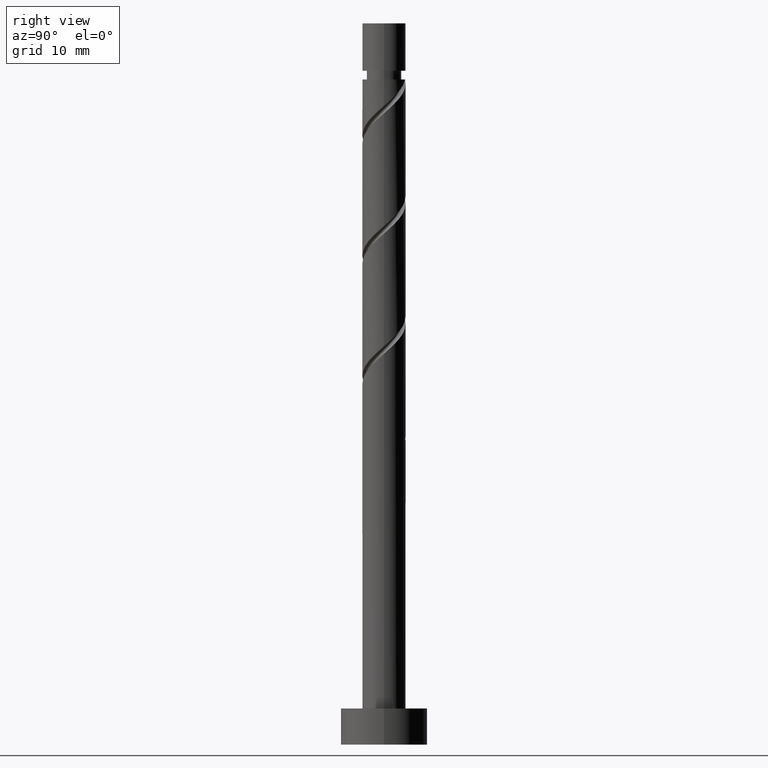
[diagram: clean part render]
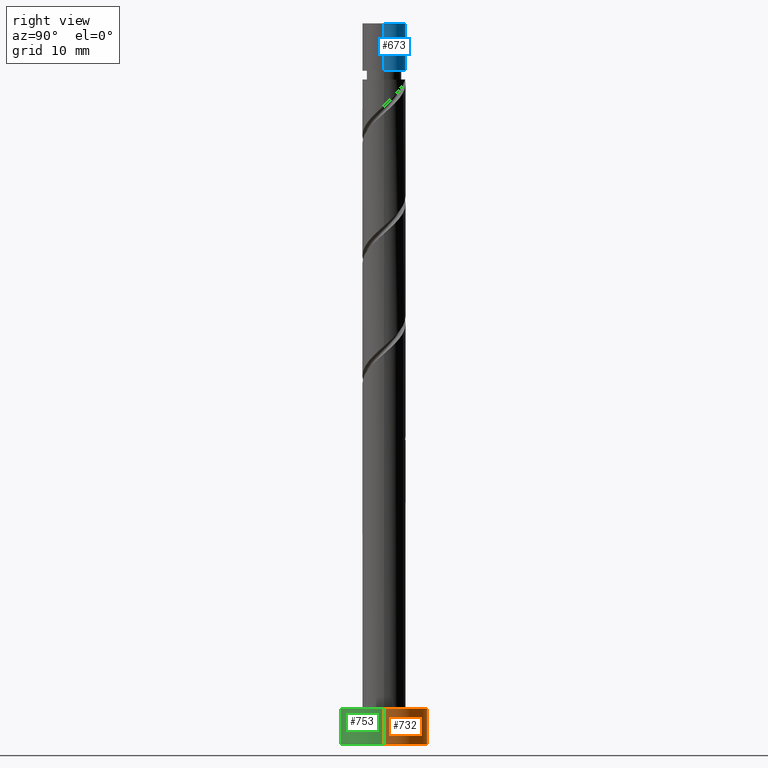
[diagram: same view with three faces highlighted in distinct colors, each labeled with its STEP entity id]
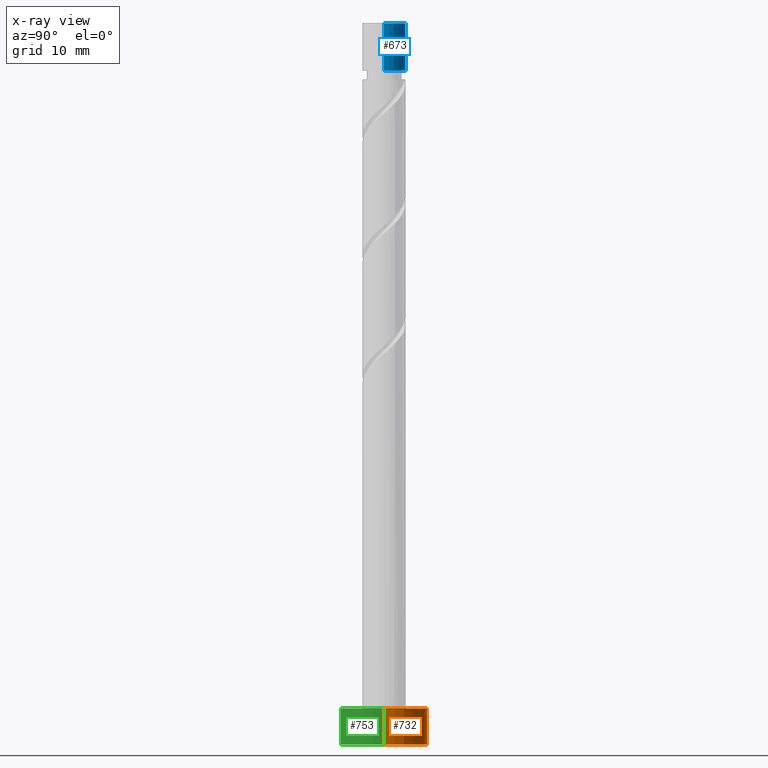
[diagram: x-ray of the same camera — body ghosted, the three highlighted faces saturated]
A machine part, right view with three faces highlighted in distinct colors.
The next image is the same camera in x-ray (body ghosted, the three faces saturated) — at least one of them is partly hidden behind the body in this view.
Their STEP definitions:

[orange] entity #732 — the highlighted cylindrical surface (partial cylindrical patch) has radius 6 mm, axis along (-0, -0, -1).
#28 = CIRCLE ( 'NONE', #917, 6.000000000000000888 ) ;
#32 = VERTEX_POINT ( 'NONE', #1425 ) ;
#34 = CARTESIAN_POINT ( 'NONE',  ( 0.000000000000000000, 0.000000000000000000, 0.000000000000000000 ) ) ;
#101 = ORIENTED_EDGE ( 'NONE', *, *, #990, .F. ) ;
#130 = VERTEX_POINT ( 'NONE', #563 ) ;
#141 = DIRECTION ( 'NONE',  ( 1.000000000000000000, 0.000000000000000000, 0.000000000000000000 ) ) ;
#197 = CIRCLE ( 'NONE', #775, 6.000000000000000888 ) ;
#207 = VERTEX_POINT ( 'NONE', #1269 ) ;
#259 = DIRECTION ( 'NONE',  ( -1.000000000000000000, 0.000000000000000000, 0.000000000000000000 ) ) ;
#303 = ORIENTED_EDGE ( 'NONE', *, *, #1416, .T. ) ;
#404 = DIRECTION ( 'NONE',  ( -0.000000000000000000, -0.000000000000000000, -1.000000000000000000 ) ) ;
#441 = CARTESIAN_POINT ( 'NONE',  ( 0.000000000000000000, 0.000000000000000000, 5.000000000000000000 ) ) ;
#464 = CARTESIAN_POINT ( 'NONE',  ( -6.000000000000000888, 0.000000000000000000, 5.000000000000000000 ) ) ;
#468 = EDGE_CURVE ( 'NONE', #512, #130, #836, .T. ) ;
#512 = VERTEX_POINT ( 'NONE', #464 ) ;
#563 = CARTESIAN_POINT ( 'NONE',  ( -6.000000000000000888, 0.000000000000000000, 0.000000000000000000 ) ) ;
#570 = VECTOR ( 'NONE', #404, 1000.000000000000000 ) ;
#577 = CYLINDRICAL_SURFACE ( 'NONE', #1373, 6.000000000000000888 ) ;
#688 = ORIENTED_EDGE ( 'NONE', *, *, #1089, .T. ) ;
#732 = ADVANCED_FACE ( 'NONE', ( #1366 ), #577, .T. ) ;
#766 = ORIENTED_EDGE ( 'NONE', *, *, #468, .F. ) ;
#775 = AXIS2_PLACEMENT_3D ( 'NONE', #947, #828, #1171 ) ;
#828 = DIRECTION ( 'NONE',  ( 0.000000000000000000, 0.000000000000000000, 1.000000000000000000 ) ) ;
#836 = LINE ( 'NONE', #1414, #570 ) ;
#875 = CARTESIAN_POINT ( 'NONE',  ( 6.000000000000000888, 7.347880794884120722E-16, 5.000000000000000000 ) ) ;
#901 = DIRECTION ( 'NONE',  ( -0.000000000000000000, -0.000000000000000000, -1.000000000000000000 ) ) ;
#917 = AXIS2_PLACEMENT_3D ( 'NONE', #34, #1054, #141 ) ;
#947 = CARTESIAN_POINT ( 'NONE',  ( 0.000000000000000000, 0.000000000000000000, 5.000000000000000000 ) ) ;
#964 = VECTOR ( 'NONE', #1200, 1000.000000000000000 ) ;
#990 = EDGE_CURVE ( 'NONE', #207, #512, #197, .T. ) ;
#1054 = DIRECTION ( 'NONE',  ( 0.000000000000000000, 0.000000000000000000, 1.000000000000000000 ) ) ;
#1085 = LINE ( 'NONE', #875, #964 ) ;
#1089 = EDGE_CURVE ( 'NONE', #207, #32, #1085, .T. ) ;
#1171 = DIRECTION ( 'NONE',  ( 1.000000000000000000, 0.000000000000000000, 0.000000000000000000 ) ) ;
#1200 = DIRECTION ( 'NONE',  ( -0.000000000000000000, -0.000000000000000000, -1.000000000000000000 ) ) ;
#1269 = CARTESIAN_POINT ( 'NONE',  ( 6.000000000000000888, 7.347880794884120722E-16, 5.000000000000000000 ) ) ;
#1366 = FACE_OUTER_BOUND ( 'NONE', #1455, .T. ) ;
#1373 = AXIS2_PLACEMENT_3D ( 'NONE', #441, #901, #259 ) ;
#1414 = CARTESIAN_POINT ( 'NONE',  ( -6.000000000000000888, 0.000000000000000000, 5.000000000000000000 ) ) ;
#1416 = EDGE_CURVE ( 'NONE', #32, #130, #28, .T. ) ;
#1425 = CARTESIAN_POINT ( 'NONE',  ( 6.000000000000000888, 7.347880794884120722E-16, 0.000000000000000000 ) ) ;
#1455 = EDGE_LOOP ( 'NONE', ( #101, #688, #303, #766 ) ) ;

[blue] entity #673 — the highlighted cylindrical surface (edge-blend (fillet) strip) has radius 3 mm, axis along (-0, -0, -1).
#82 = CARTESIAN_POINT ( 'NONE',  ( -3.000000000000001776, 0.000000000000000000, 93.42674163329729708 ) ) ;
#87 = DIRECTION ( 'NONE',  ( -0.000000000000000000, -0.000000000000000000, -1.000000000000000000 ) ) ;
#100 = AXIS2_PLACEMENT_3D ( 'NONE', #1403, #375, #834 ) ;
#122 = VERTEX_POINT ( 'NONE', #82 ) ;
#124 = CIRCLE ( 'NONE', #100, 3.000000000000000444 ) ;
#191 = VERTEX_POINT ( 'NONE', #810 ) ;
#218 = EDGE_CURVE ( 'NONE', #191, #122, #346, .T. ) ;
#255 = CARTESIAN_POINT ( 'NONE',  ( -3.000000000000000444, 0.000000000000000000, 100.0000000000000000 ) ) ;
#257 = ORIENTED_EDGE ( 'NONE', *, *, #1172, .T. ) ;
#267 = CIRCLE ( 'NONE', #892, 3.000000000000001776 ) ;
#316 = VECTOR ( 'NONE', #1442, 1000.000000000000000 ) ;
#320 = CYLINDRICAL_SURFACE ( 'NONE', #1133, 3.000000000000000444 ) ;
#346 = LINE ( 'NONE', #255, #567 ) ;
#375 = DIRECTION ( 'NONE',  ( 0.000000000000000000, 0.000000000000000000, 1.000000000000000000 ) ) ;
#450 = DIRECTION ( 'NONE',  ( -1.000000000000000000, 0.000000000000000000, 0.000000000000000000 ) ) ;
#515 = LINE ( 'NONE', #975, #316 ) ;
#567 = VECTOR ( 'NONE', #698, 1000.000000000000000 ) ;
#664 = FACE_OUTER_BOUND ( 'NONE', #1437, .T. ) ;
#673 = ADVANCED_FACE ( 'NONE', ( #664 ), #320, .T. ) ;
#679 = ORIENTED_EDGE ( 'NONE', *, *, #1441, .F. ) ;
#682 = DIRECTION ( 'NONE',  ( -1.000000000000000000, 0.000000000000000000, 0.000000000000000000 ) ) ;
#698 = DIRECTION ( 'NONE',  ( -0.000000000000000000, -0.000000000000000000, -1.000000000000000000 ) ) ;
#709 = CARTESIAN_POINT ( 'NONE',  ( 0.000000000000000000, 0.000000000000000000, 93.42674163329729708 ) ) ;
#733 = CARTESIAN_POINT ( 'NONE',  ( 3.000000000000000444, 3.673940397442060361E-16, 100.0000000000000000 ) ) ;
#741 = VERTEX_POINT ( 'NONE', #733 ) ;
#810 = CARTESIAN_POINT ( 'NONE',  ( -3.000000000000000444, 0.000000000000000000, 100.0000000000000000 ) ) ;
#834 = DIRECTION ( 'NONE',  ( 1.000000000000000000, 0.000000000000000000, 0.000000000000000000 ) ) ;
#840 = DIRECTION ( 'NONE',  ( -0.000000000000000000, -0.000000000000000000, -1.000000000000000000 ) ) ;
#892 = AXIS2_PLACEMENT_3D ( 'NONE', #709, #840, #450 ) ;
#914 = ORIENTED_EDGE ( 'NONE', *, *, #218, .F. ) ;
#975 = CARTESIAN_POINT ( 'NONE',  ( 3.000000000000000444, 3.673940397442060361E-16, 100.0000000000000000 ) ) ;
#1014 = EDGE_CURVE ( 'NONE', #741, #191, #124, .T. ) ;
#1082 = VERTEX_POINT ( 'NONE', #1449 ) ;
#1118 = CARTESIAN_POINT ( 'NONE',  ( 0.000000000000000000, 0.000000000000000000, 100.0000000000000000 ) ) ;
#1133 = AXIS2_PLACEMENT_3D ( 'NONE', #1118, #87, #682 ) ;
#1172 = EDGE_CURVE ( 'NONE', #741, #1082, #515, .T. ) ;
#1271 = ORIENTED_EDGE ( 'NONE', *, *, #1014, .F. ) ;
#1403 = CARTESIAN_POINT ( 'NONE',  ( 0.000000000000000000, 0.000000000000000000, 100.0000000000000000 ) ) ;
#1437 = EDGE_LOOP ( 'NONE', ( #1271, #257, #679, #914 ) ) ;
#1441 = EDGE_CURVE ( 'NONE', #122, #1082, #267, .T. ) ;
#1442 = DIRECTION ( 'NONE',  ( -0.000000000000000000, -0.000000000000000000, -1.000000000000000000 ) ) ;
#1449 = CARTESIAN_POINT ( 'NONE',  ( 3.000000000000001776, 3.673940397442061840E-16, 93.42674163329729708 ) ) ;

[green] entity #753 — the highlighted cylindrical surface (partial cylindrical patch) has radius 6 mm, axis along (-0, -0, -1).
#32 = VERTEX_POINT ( 'NONE', #1425 ) ;
#130 = VERTEX_POINT ( 'NONE', #563 ) ;
#202 = DIRECTION ( 'NONE',  ( 1.000000000000000000, 0.000000000000000000, 0.000000000000000000 ) ) ;
#207 = VERTEX_POINT ( 'NONE', #1269 ) ;
#232 = CARTESIAN_POINT ( 'NONE',  ( 0.000000000000000000, 0.000000000000000000, 0.000000000000000000 ) ) ;
#266 = FACE_OUTER_BOUND ( 'NONE', #602, .T. ) ;
#285 = ORIENTED_EDGE ( 'NONE', *, *, #338, .F. ) ;
#338 = EDGE_CURVE ( 'NONE', #512, #207, #1325, .T. ) ;
#362 = DIRECTION ( 'NONE',  ( 1.000000000000000000, 0.000000000000000000, 0.000000000000000000 ) ) ;
#404 = DIRECTION ( 'NONE',  ( -0.000000000000000000, -0.000000000000000000, -1.000000000000000000 ) ) ;
#436 = AXIS2_PLACEMENT_3D ( 'NONE', #1056, #1165, #1388 ) ;
#464 = CARTESIAN_POINT ( 'NONE',  ( -6.000000000000000888, 0.000000000000000000, 5.000000000000000000 ) ) ;
#468 = EDGE_CURVE ( 'NONE', #512, #130, #836, .T. ) ;
#512 = VERTEX_POINT ( 'NONE', #464 ) ;
#543 = AXIS2_PLACEMENT_3D ( 'NONE', #1390, #1482, #362 ) ;
#563 = CARTESIAN_POINT ( 'NONE',  ( -6.000000000000000888, 0.000000000000000000, 0.000000000000000000 ) ) ;
#570 = VECTOR ( 'NONE', #404, 1000.000000000000000 ) ;
#599 = EDGE_CURVE ( 'NONE', #130, #32, #712, .T. ) ;
#602 = EDGE_LOOP ( 'NONE', ( #707, #285, #1230, #1280 ) ) ;
#707 = ORIENTED_EDGE ( 'NONE', *, *, #1089, .F. ) ;
#710 = CYLINDRICAL_SURFACE ( 'NONE', #436, 6.000000000000000888 ) ;
#712 = CIRCLE ( 'NONE', #1140, 6.000000000000000888 ) ;
#753 = ADVANCED_FACE ( 'NONE', ( #266 ), #710, .T. ) ;
#836 = LINE ( 'NONE', #1414, #570 ) ;
#875 = CARTESIAN_POINT ( 'NONE',  ( 6.000000000000000888, 7.347880794884120722E-16, 5.000000000000000000 ) ) ;
#909 = DIRECTION ( 'NONE',  ( 0.000000000000000000, 0.000000000000000000, 1.000000000000000000 ) ) ;
#964 = VECTOR ( 'NONE', #1200, 1000.000000000000000 ) ;
#1056 = CARTESIAN_POINT ( 'NONE',  ( 0.000000000000000000, 0.000000000000000000, 5.000000000000000000 ) ) ;
#1085 = LINE ( 'NONE', #875, #964 ) ;
#1089 = EDGE_CURVE ( 'NONE', #207, #32, #1085, .T. ) ;
#1140 = AXIS2_PLACEMENT_3D ( 'NONE', #232, #909, #202 ) ;
#1165 = DIRECTION ( 'NONE',  ( -0.000000000000000000, -0.000000000000000000, -1.000000000000000000 ) ) ;
#1200 = DIRECTION ( 'NONE',  ( -0.000000000000000000, -0.000000000000000000, -1.000000000000000000 ) ) ;
#1230 = ORIENTED_EDGE ( 'NONE', *, *, #468, .T. ) ;
#1269 = CARTESIAN_POINT ( 'NONE',  ( 6.000000000000000888, 7.347880794884120722E-16, 5.000000000000000000 ) ) ;
#1280 = ORIENTED_EDGE ( 'NONE', *, *, #599, .T. ) ;
#1325 = CIRCLE ( 'NONE', #543, 6.000000000000000888 ) ;
#1388 = DIRECTION ( 'NONE',  ( -1.000000000000000000, 0.000000000000000000, 0.000000000000000000 ) ) ;
#1390 = CARTESIAN_POINT ( 'NONE',  ( 0.000000000000000000, 0.000000000000000000, 5.000000000000000000 ) ) ;
#1414 = CARTESIAN_POINT ( 'NONE',  ( -6.000000000000000888, 0.000000000000000000, 5.000000000000000000 ) ) ;
#1425 = CARTESIAN_POINT ( 'NONE',  ( 6.000000000000000888, 7.347880794884120722E-16, 0.000000000000000000 ) ) ;
#1482 = DIRECTION ( 'NONE',  ( 0.000000000000000000, 0.000000000000000000, 1.000000000000000000 ) ) ;